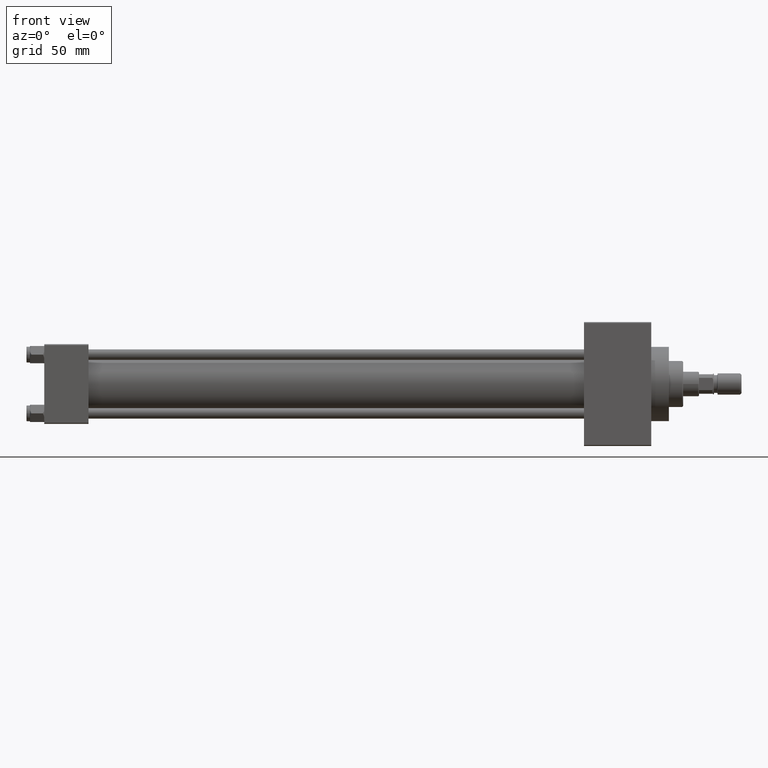
[diagram: clean part render]
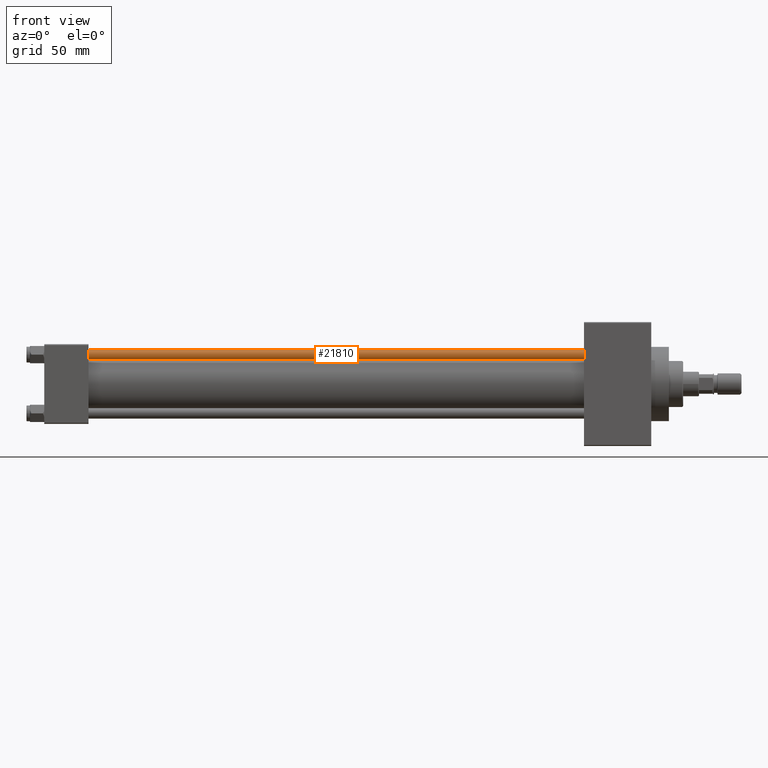
[diagram: same view with one face highlighted and labeled with its STEP entity id]
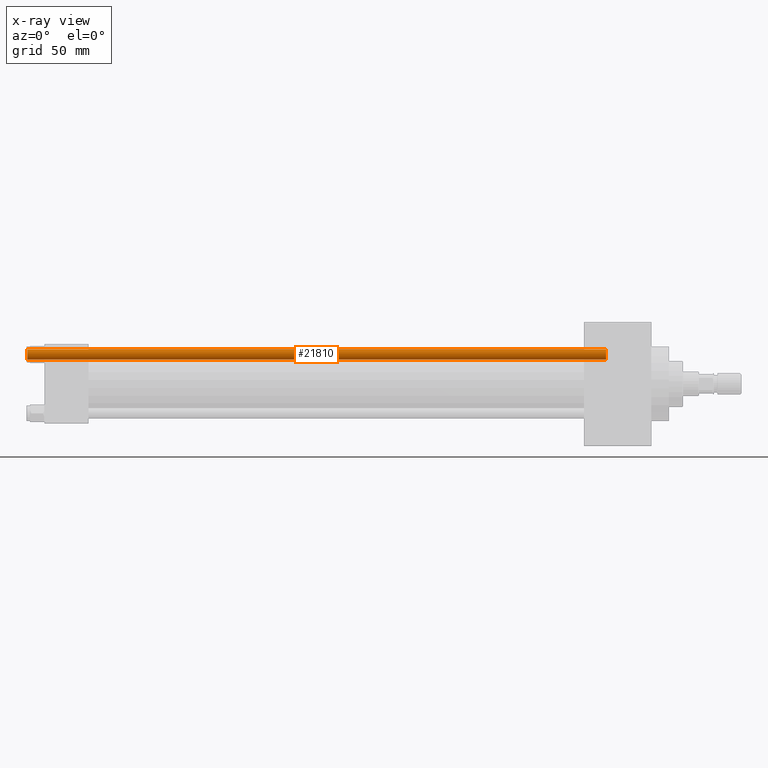
[diagram: x-ray of the same camera — body ghosted, the highlighted face saturated]
A machine part, front view. The second image highlights one B-rep face of the part: STEP entity #21810.
The next image is the same camera in x-ray: the body ghosted, the highlighted face saturated — about 0% of this face is hidden behind the body in this view.
In plain terms, the highlighted cylindrical surface (edge-blend (fillet) strip) has radius 3 mm, axis along (1, 0, 0).
Its self-contained STEP definition (entity closure, byte-faithful):
#1236 = EDGE_CURVE ( 'NONE', #14699, #28025, #22921, .T. ) ;
#2597 = EDGE_CURVE ( 'NONE', #28025, #14945, #8529, .T. ) ;
#3755 = DIRECTION ( 'NONE',  ( -1.000000000000000000, 0.000000000000000000, 0.000000000000000000 ) ) ;
#3795 = VECTOR ( 'NONE', #44519, 1000.000000000000000 ) ;
#6783 = DIRECTION ( 'NONE',  ( 1.000000000000000000, 0.000000000000000000, 0.000000000000000000 ) ) ;
#7511 = DIRECTION ( 'NONE',  ( -0.000000000000000000, -0.000000000000000000, -1.000000000000000000 ) ) ;
#8529 = CIRCLE ( 'NONE', #28518, 3.000000000000000444 ) ;
#9947 = DIRECTION ( 'NONE',  ( 1.000000000000000000, 0.000000000000000000, 0.000000000000000000 ) ) ;
#10394 = CARTESIAN_POINT ( 'NONE',  ( 3.000000000000000444, 3.673940397442060361E-16, 327.5000000000000000 ) ) ;
#10546 = CARTESIAN_POINT ( 'NONE',  ( 0.000000000000000000, 0.000000000000000000, 327.5000000000000000 ) ) ;
#11086 = AXIS2_PLACEMENT_3D ( 'NONE', #26760, #7511, #3755 ) ;
#11511 = CARTESIAN_POINT ( 'NONE',  ( -3.000000000000000444, 0.000000000000000000, 327.5000000000000000 ) ) ;
#13267 = VECTOR ( 'NONE', #26916, 1000.000000000000000 ) ;
#13710 = DIRECTION ( 'NONE',  ( -0.000000000000000000, -0.000000000000000000, 1.000000000000000000 ) ) ;
#13954 = ORIENTED_EDGE ( 'NONE', *, *, #31776, .T. ) ;
#14699 = VERTEX_POINT ( 'NONE', #10394 ) ;
#14945 = VERTEX_POINT ( 'NONE', #20749 ) ;
#18763 = CYLINDRICAL_SURFACE ( 'NONE', #11086, 3.000000000000000444 ) ;
#20749 = CARTESIAN_POINT ( 'NONE',  ( -3.000000000000000444, 0.000000000000000000, 0.5000000000000559552 ) ) ;
#21810 = ADVANCED_FACE ( 'NONE', ( #38068 ), #18763, .T. ) ;
#22921 = LINE ( 'NONE', #41733, #13267 ) ;
#26760 = CARTESIAN_POINT ( 'NONE',  ( 0.000000000000000000, 0.000000000000000000, 328.0000000000000000 ) ) ;
#26916 = DIRECTION ( 'NONE',  ( -0.000000000000000000, -0.000000000000000000, -1.000000000000000000 ) ) ;
#28025 = VERTEX_POINT ( 'NONE', #30586 ) ;
#28518 = AXIS2_PLACEMENT_3D ( 'NONE', #48064, #13710, #9947 ) ;
#28603 = ORIENTED_EDGE ( 'NONE', *, *, #41330, .F. ) ;
#28708 = LINE ( 'NONE', #44035, #3795 ) ;
#30477 = CIRCLE ( 'NONE', #36908, 3.000000000000000444 ) ;
#30586 = CARTESIAN_POINT ( 'NONE',  ( 3.000000000000000444, 3.673940397442060361E-16, 0.5000000000000559552 ) ) ;
#31776 = EDGE_CURVE ( 'NONE', #38304, #14699, #30477, .T. ) ;
#31859 = ORIENTED_EDGE ( 'NONE', *, *, #1236, .T. ) ;
#33779 = ORIENTED_EDGE ( 'NONE', *, *, #2597, .T. ) ;
#36908 = AXIS2_PLACEMENT_3D ( 'NONE', #10546, #41097, #6783 ) ;
#38068 = FACE_OUTER_BOUND ( 'NONE', #46333, .T. ) ;
#38304 = VERTEX_POINT ( 'NONE', #11511 ) ;
#41097 = DIRECTION ( 'NONE',  ( 0.000000000000000000, 0.000000000000000000, -1.000000000000000000 ) ) ;
#41330 = EDGE_CURVE ( 'NONE', #38304, #14945, #28708, .T. ) ;
#41733 = CARTESIAN_POINT ( 'NONE',  ( 3.000000000000000444, 3.673940397442060361E-16, 328.0000000000000000 ) ) ;
#44035 = CARTESIAN_POINT ( 'NONE',  ( -3.000000000000000444, 0.000000000000000000, 328.0000000000000000 ) ) ;
#44519 = DIRECTION ( 'NONE',  ( -0.000000000000000000, -0.000000000000000000, -1.000000000000000000 ) ) ;
#46333 = EDGE_LOOP ( 'NONE', ( #13954, #31859, #33779, #28603 ) ) ;
#48064 = CARTESIAN_POINT ( 'NONE',  ( 0.000000000000000000, 0.000000000000000000, 0.5000000000000559552 ) ) ;